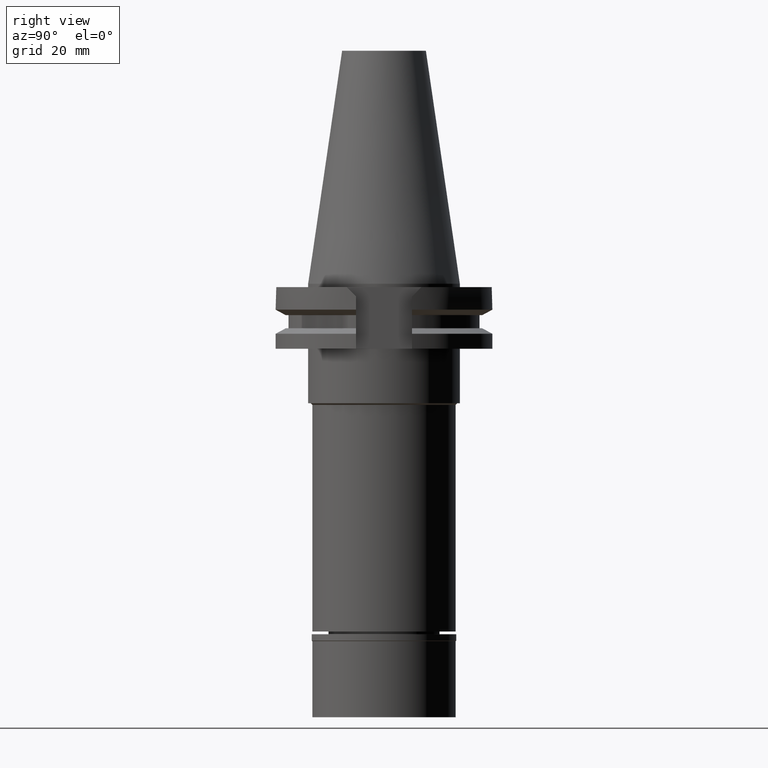
[diagram: clean part render]
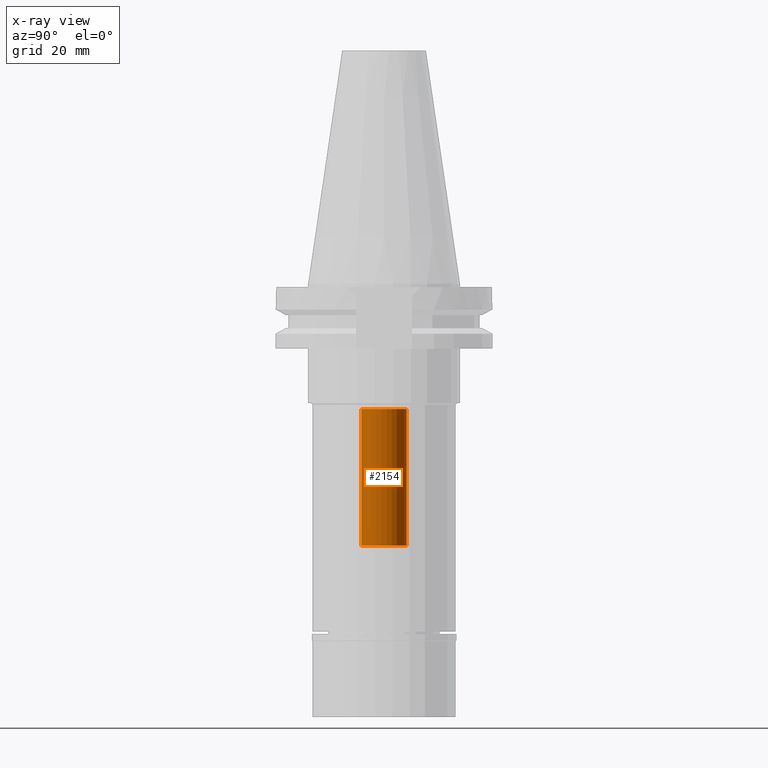
[diagram: x-ray — body ghosted, one internal face saturated and labeled with its STEP entity id]
A machine part, right view, then the same camera in x-ray: the body is ghosted and one INTERNAL B-rep face — a face not visible from any outside direction — is saturated and labeled: STEP entity #2154.
In plain terms, the highlighted cylindrical surface (edge-blend (fillet) strip) has radius 6.65 mm, axis along (0, 0, -1).
Its self-contained STEP definition (entity closure, byte-faithful):
#91 = DIRECTION ( 'NONE',  ( 0.0000000000000000000, -1.000000000000000000, 0.0000000000000000000 ) ) ;
#135 = VERTEX_POINT ( 'NONE', #1098 ) ;
#450 = CIRCLE ( 'NONE', #2930, 6.649999999999999467 ) ;
#478 = ORIENTED_EDGE ( 'NONE', *, *, #1380, .F. ) ;
#498 = LINE ( 'NONE', #519, #1355 ) ;
#519 = CARTESIAN_POINT ( 'NONE',  ( 0.0000000000000000000, -6.649999999999999467, -76.79999999999999716 ) ) ;
#527 = CARTESIAN_POINT ( 'NONE',  ( 0.0000000000000000000, 6.649999999999999467, -76.79999999999999716 ) ) ;
#543 = DIRECTION ( 'NONE',  ( 0.0000000000000000000, 0.0000000000000000000, 1.000000000000000000 ) ) ;
#548 = VERTEX_POINT ( 'NONE', #2810 ) ;
#635 = ORIENTED_EDGE ( 'NONE', *, *, #1065, .T. ) ;
#714 = CARTESIAN_POINT ( 'NONE',  ( 0.0000000000000000000, 2.175431957834999696E-14, -76.79999999999999716 ) ) ;
#868 = CARTESIAN_POINT ( 'NONE',  ( 0.0000000000000000000, 2.175431957834999696E-14, 77.63750000000000284 ) ) ;
#965 = ORIENTED_EDGE ( 'NONE', *, *, #2448, .T. ) ;
#983 = AXIS2_PLACEMENT_3D ( 'NONE', #868, #2367, #91 ) ;
#1065 = EDGE_CURVE ( 'NONE', #548, #135, #450, .T. ) ;
#1098 = CARTESIAN_POINT ( 'NONE',  ( 0.0000000000000000000, -6.649999999999999467, -76.79999999999999716 ) ) ;
#1355 = VECTOR ( 'NONE', #2808, 1000.000000000000000 ) ;
#1380 = EDGE_CURVE ( 'NONE', #548, #2504, #1783, .T. ) ;
#1610 = CYLINDRICAL_SURFACE ( 'NONE', #983, 6.649999999999999467 ) ;
#1783 = LINE ( 'NONE', #527, #3260 ) ;
#1858 = FACE_OUTER_BOUND ( 'NONE', #3282, .T. ) ;
#1951 = DIRECTION ( 'NONE',  ( 0.0000000000000000000, 1.000000000000000000, 0.0000000000000000000 ) ) ;
#2081 = EDGE_CURVE ( 'NONE', #2688, #2504, #2882, .T. ) ;
#2154 = ADVANCED_FACE ( 'NONE', ( #1858 ), #1610, .F. ) ;
#2352 = CARTESIAN_POINT ( 'NONE',  ( 0.0000000000000000000, 2.175431957834999696E-14, -36.75000000000000000 ) ) ;
#2367 = DIRECTION ( 'NONE',  ( 0.0000000000000000000, 0.0000000000000000000, -1.000000000000000000 ) ) ;
#2448 = EDGE_CURVE ( 'NONE', #135, #2688, #498, .T. ) ;
#2504 = VERTEX_POINT ( 'NONE', #2556 ) ;
#2556 = CARTESIAN_POINT ( 'NONE',  ( 0.0000000000000000000, 6.649999999999999467, -36.75000000000000000 ) ) ;
#2614 = CARTESIAN_POINT ( 'NONE',  ( 0.0000000000000000000, -6.649999999999999467, -36.75000000000000000 ) ) ;
#2682 = DIRECTION ( 'NONE',  ( 0.0000000000000000000, 0.0000000000000000000, -1.000000000000000000 ) ) ;
#2688 = VERTEX_POINT ( 'NONE', #2614 ) ;
#2737 = ORIENTED_EDGE ( 'NONE', *, *, #2081, .T. ) ;
#2808 = DIRECTION ( 'NONE',  ( 0.0000000000000000000, 0.0000000000000000000, 1.000000000000000000 ) ) ;
#2810 = CARTESIAN_POINT ( 'NONE',  ( 0.0000000000000000000, 6.649999999999999467, -76.79999999999999716 ) ) ;
#2867 = DIRECTION ( 'NONE',  ( 0.0000000000000000000, -1.000000000000000000, 0.0000000000000000000 ) ) ;
#2882 = CIRCLE ( 'NONE', #3152, 6.649999999999999467 ) ;
#2930 = AXIS2_PLACEMENT_3D ( 'NONE', #714, #2682, #1951 ) ;
#3132 = DIRECTION ( 'NONE',  ( 0.0000000000000000000, 0.0000000000000000000, 1.000000000000000000 ) ) ;
#3152 = AXIS2_PLACEMENT_3D ( 'NONE', #2352, #3132, #2867 ) ;
#3260 = VECTOR ( 'NONE', #543, 1000.000000000000000 ) ;
#3282 = EDGE_LOOP ( 'NONE', ( #635, #965, #2737, #478 ) ) ;